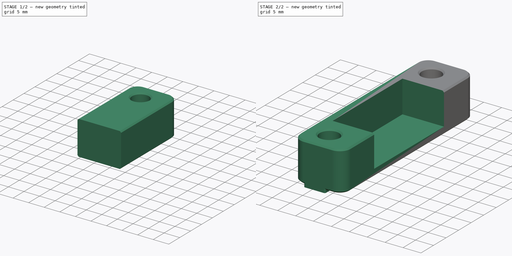
[diagram: build sequence overview — one tinted view per stage of 2, left to right]
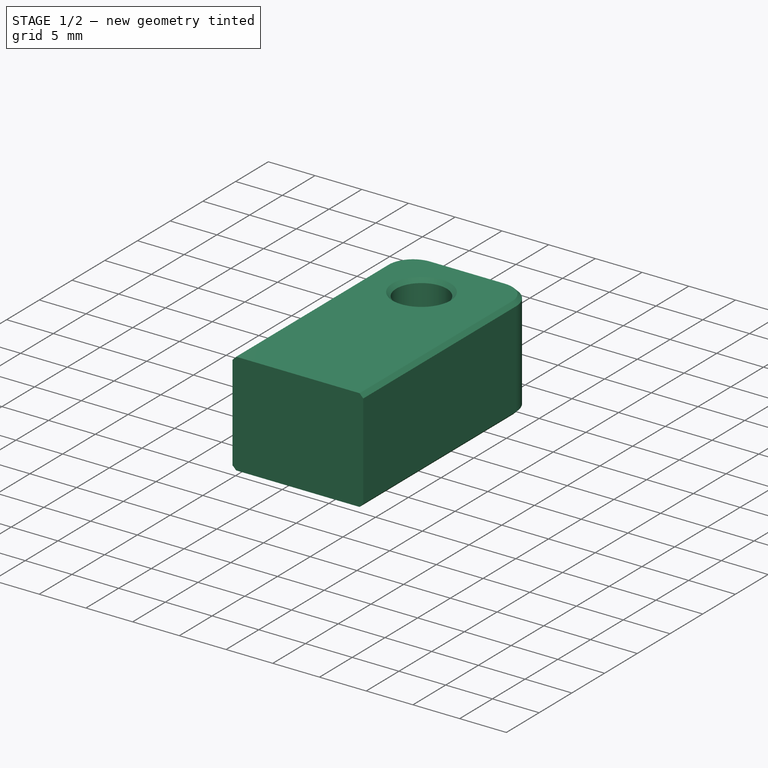
[diagram: stage 1 of 2 — iso view after this stage's code; geometry added in this stage tinted green]
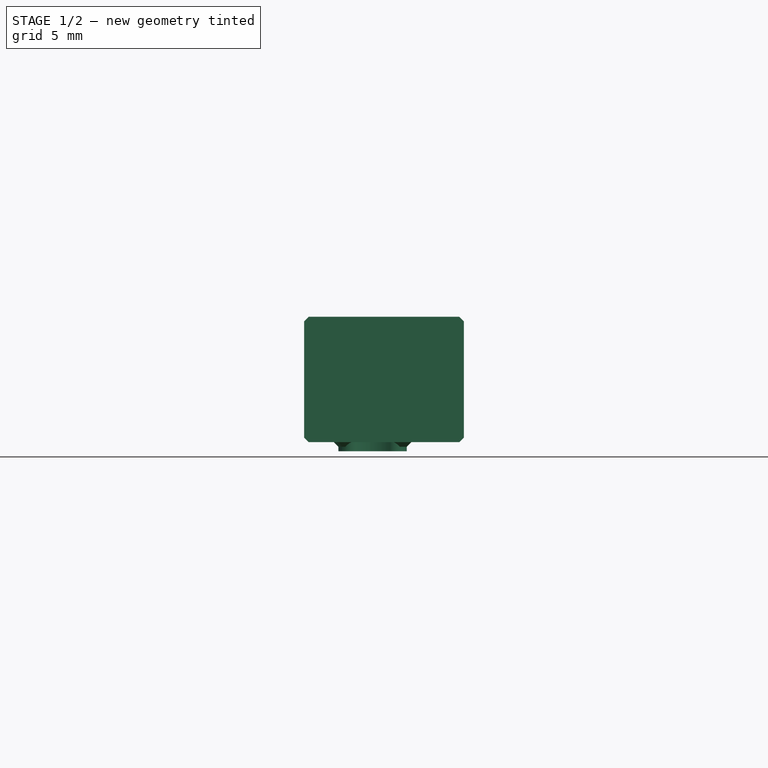
[diagram: stage 1 of 2 — front view after this stage's code; geometry added in this stage tinted green]
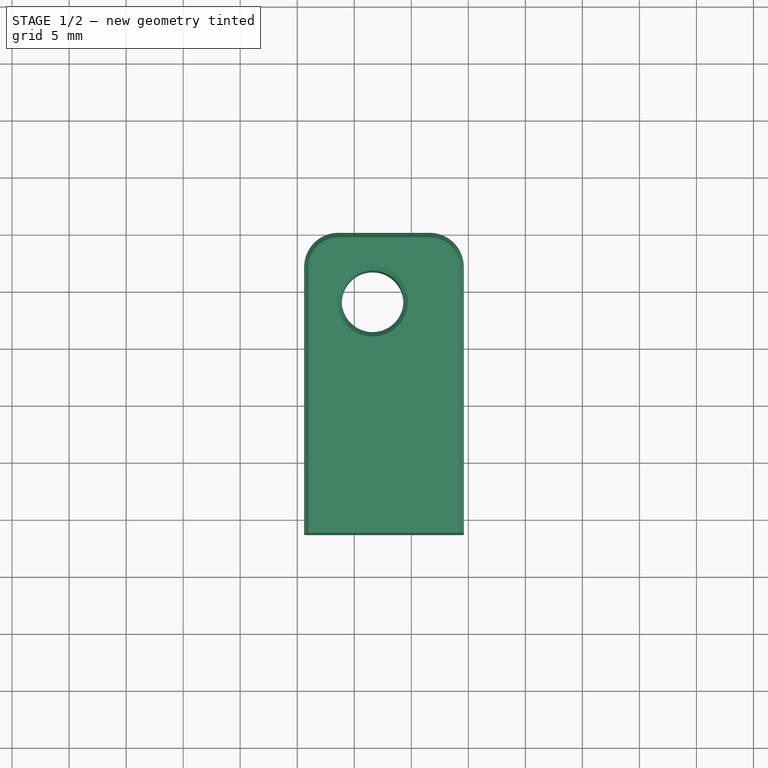
[diagram: stage 1 of 2 — top view after this stage's code; geometry added in this stage tinted green]
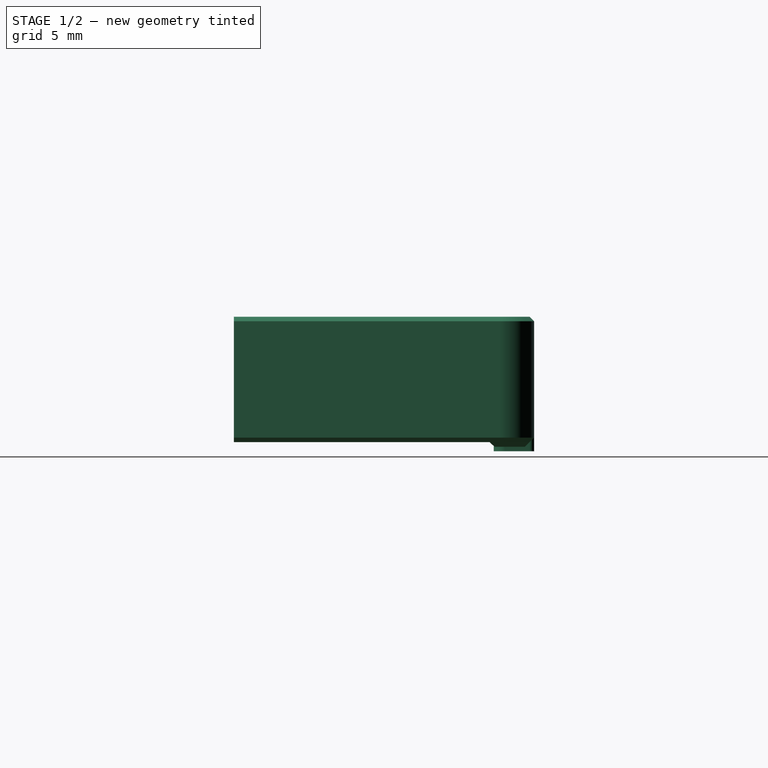
[diagram: stage 1 of 2 — right view after this stage's code; geometry added in this stage tinted green]
FCSTD DOCUMENT  (FreeCAD 0.22R37645 (Git))
Label: bottom panel support
License: All rights reserved
LicenseURL: http://en.wikipedia.org/wiki/All_rights_reserved
objects: Sketcher::SketchObject×2, PartDesign::Pocket×2, Part::Feature×1, PartDesign::FeatureBase×1, PartDesign::Mirrored×1, PartDesign::Body×1
note: 10 computed .brp shape members not serialized (recipe doc carries the construction recipe); baked Part::Feature solids carry a one-line shape summary decoded from their .brp

FEATURE [Part::Feature] Part__Feature142  label="Inverted_DIN_Mount(Mirror)_x2"
  Placement = pos=(-21.2334,262.868,-573.482) rot=(-0.707107,0,0.707107;3.14159rad)
  shape: bbox 11.81 x 60.01 x 77.92 mm, 156 faces (baked)
FEATURE [PartDesign::FeatureBase] BaseFeature
  BaseFeature = -> Part__Feature142
  Suppressed = false
FEATURE [Sketcher::SketchObject] Sketch
  AttachmentSupport = -> [BaseFeature]
  FullyConstrained = false
  MapMode = 5
  Support = -> [BaseFeature]
  sketch-geometry (6):
    g0: LineSegment StartX=-79.7555 StartY=3.68077 StartZ=0 EndX=-32.5817 EndY=3.68077 EndZ=0
    g1: LineSegment StartX=-32.5817 StartY=3.68077 StartZ=0 EndX=-32.5817 EndY=38.8266 EndZ=0
    g2: LineSegment StartX=-32.5817 StartY=38.8266 StartZ=0 EndX=16.8101 EndY=38.8266 EndZ=0
    g3: LineSegment StartX=16.8101 StartY=38.8266 StartZ=0 EndX=19.9664 EndY=-37.2658 EndZ=0
    g4: LineSegment StartX=19.9664 StartY=-37.2658 StartZ=0 EndX=-73.1017 EndY=-37.2658 EndZ=0
    g5: LineSegment StartX=-73.1017 StartY=-37.2658 StartZ=0 EndX=-79.7555 EndY=3.68077 EndZ=0
  constraints (10):
    c: Horizontal(g0)
    c: Coincident(g0,g1)
    c: Vertical(g1)
    c: Coincident(g1,g2)
    c: Horizontal(g2)
    c: Coincident(g2,g3)
    c: Coincident(g3,g4)
    c: Horizontal(g4)
    c: Coincident(g4,g5)
    c: Coincident(g5,g0)
FEATURE [PartDesign::Pocket] Pocket
  BaseFeature = -> BaseFeature
  Direction = (0,0,-1)
  Length = 5
  Length2 = 5
  Profile = -> Sketch
  ReferenceAxis = -> Sketch [N_Axis]
  Suppressed = false
  Type = 1
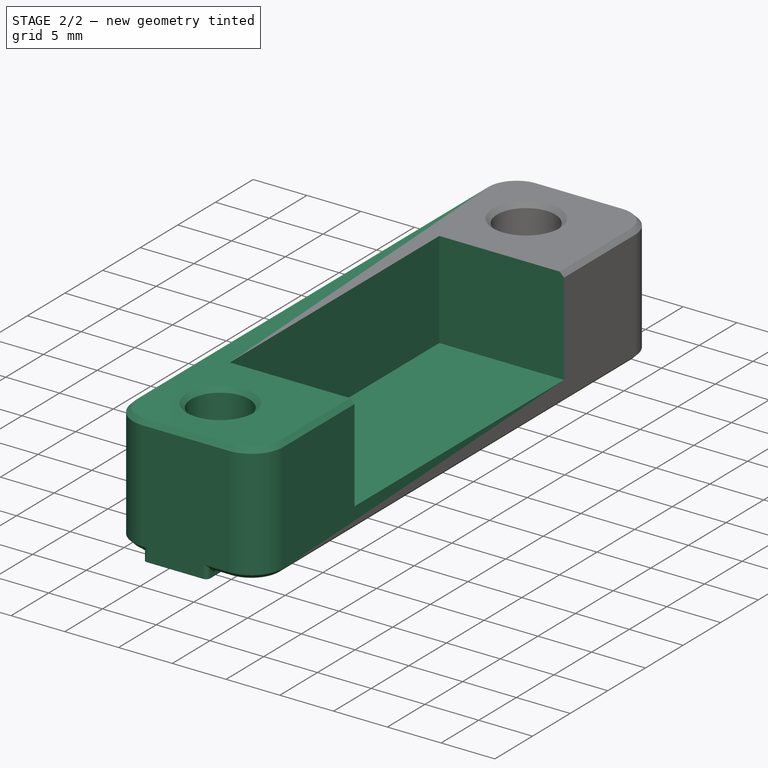
[diagram: stage 2 of 2 — iso view after this stage's code; geometry added in this stage tinted green]
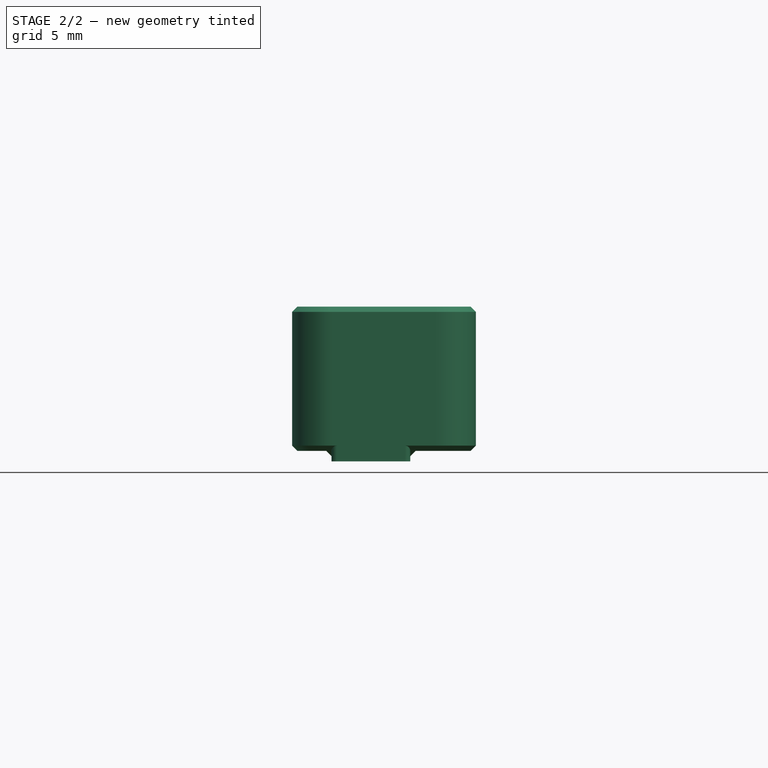
[diagram: stage 2 of 2 — front view after this stage's code; geometry added in this stage tinted green]
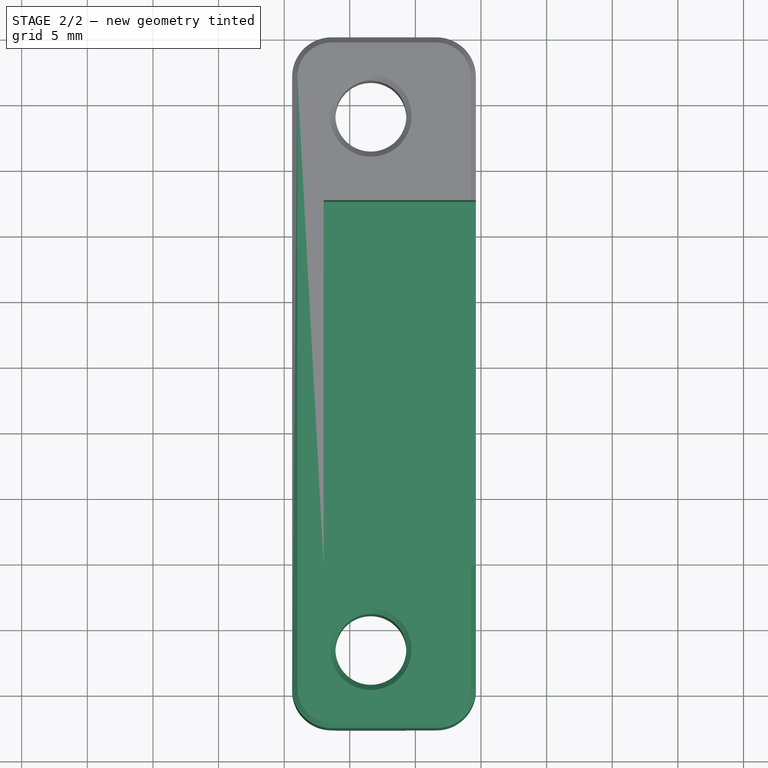
[diagram: stage 2 of 2 — top view after this stage's code; geometry added in this stage tinted green]
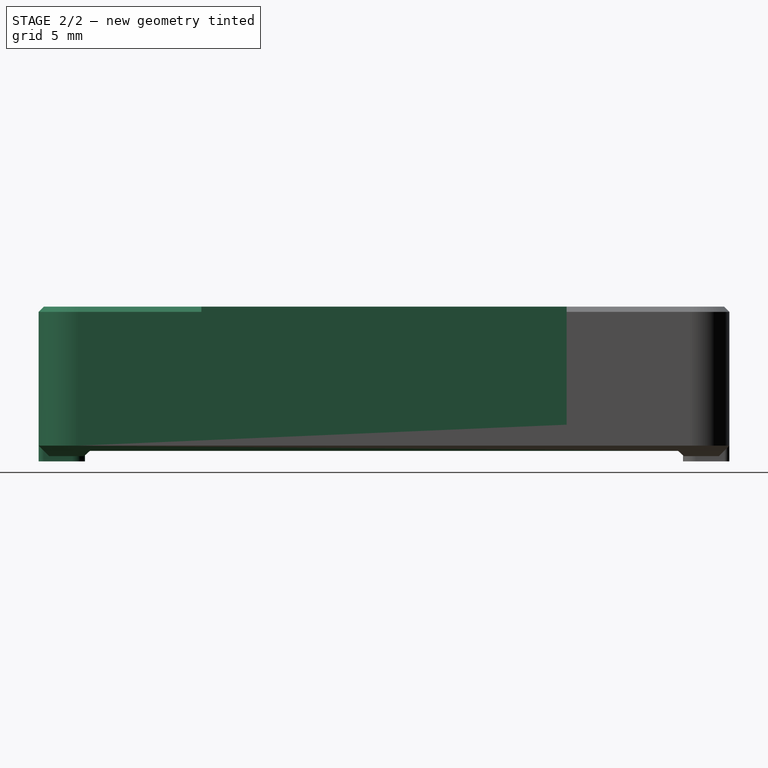
[diagram: stage 2 of 2 — right view after this stage's code; geometry added in this stage tinted green]
FEATURE [PartDesign::Mirrored] Mirrored
  BaseFeature = -> Pocket
  MirrorPlane = -> Pocket [Face15]
  Refine = true
  Suppressed = false
  TransformMode = 1
FEATURE [Sketcher::SketchObject] Sketch001
  AttachmentSupport = -> [Mirrored]
  ExternalGeometry = -> [Mirrored]
  FullyConstrained = false
  MapMode = 5
  Support = -> [Mirrored]
  sketch-geometry (4):
    g0: LineSegment StartX=-66.9931 StartY=17.6 StartZ=0 EndX=-66.9931 EndY=-10.2385 EndZ=0
    g1: LineSegment StartX=-66.9931 StartY=-10.2385 StartZ=0 EndX=-39.4713 EndY=-10.2385 EndZ=0
    g2: LineSegment StartX=-39.4713 StartY=-10.2385 StartZ=0 EndX=-39.4713 EndY=17.6 EndZ=0
    g3: LineSegment StartX=-39.4713 StartY=17.6 StartZ=0 EndX=-66.9931 EndY=17.6 EndZ=0
  constraints (11):
    c: Coincident(g0,g1)
    c: Coincident(g1,g2)
    c: Coincident(g2,g3)
    c: Coincident(g3,g0)
    c: Vertical(g0)
    c: Vertical(g2)
    c: Horizontal(g1)
    c: Horizontal(g3)
    c: DistanceX(g-5,g0) = 2
    c: DistanceY(g-4,g0) = 12
    c: DistanceY(g0,g-3) = 12
FEATURE [PartDesign::Pocket] Pocket001
  BaseFeature = -> Mirrored
  Direction = (0,0,-1)
  Length = 9
  Length2 = 5
  Profile = -> Sketch001
  ReferenceAxis = -> Sketch001 [N_Axis]
  Suppressed = false
  Type = 0
FEATURE [PartDesign::Body] Body  label="bottom panel support"
  AllowCompound = false
  BaseFeature = -> Part__Feature142
  Group = -> [BaseFeature,Sketch,Pocket,Mirrored,Sketch001,Pocket001]
  Origin = -> Origin
  Tip = -> Pocket001
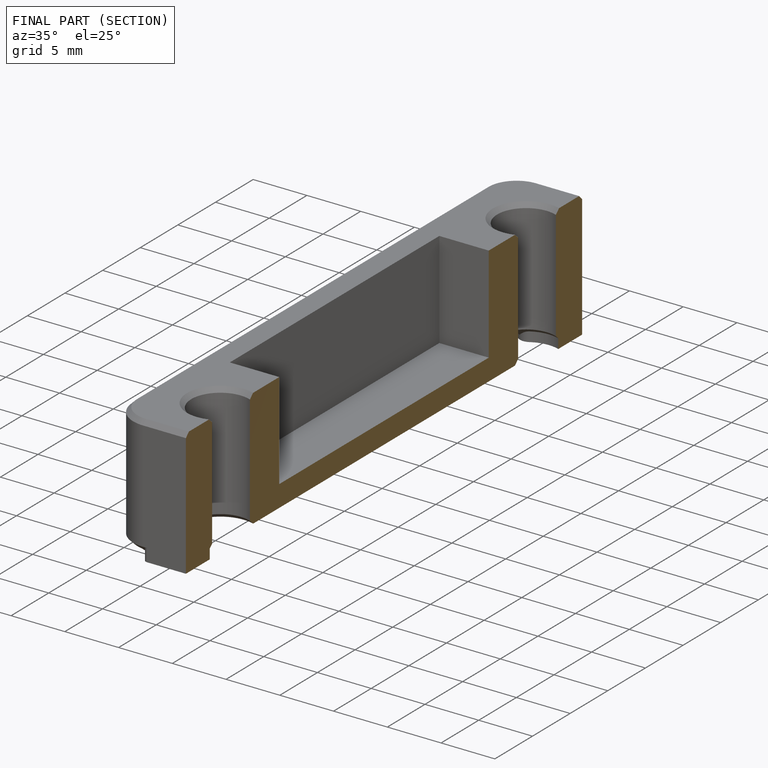
[diagram: finished part — half-section view (interior)]
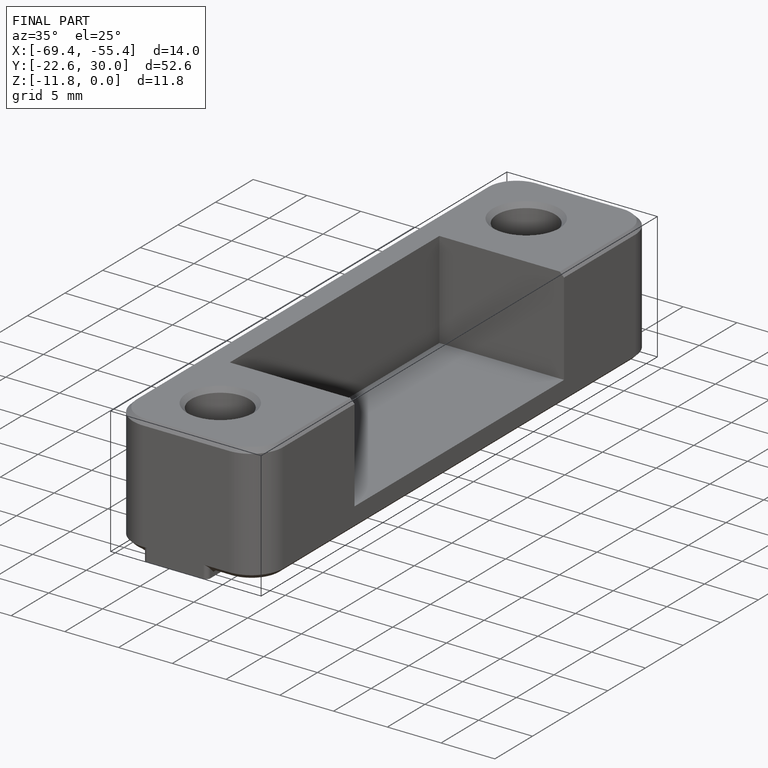
[diagram: finished part — iso view with bounding-box wireframe]
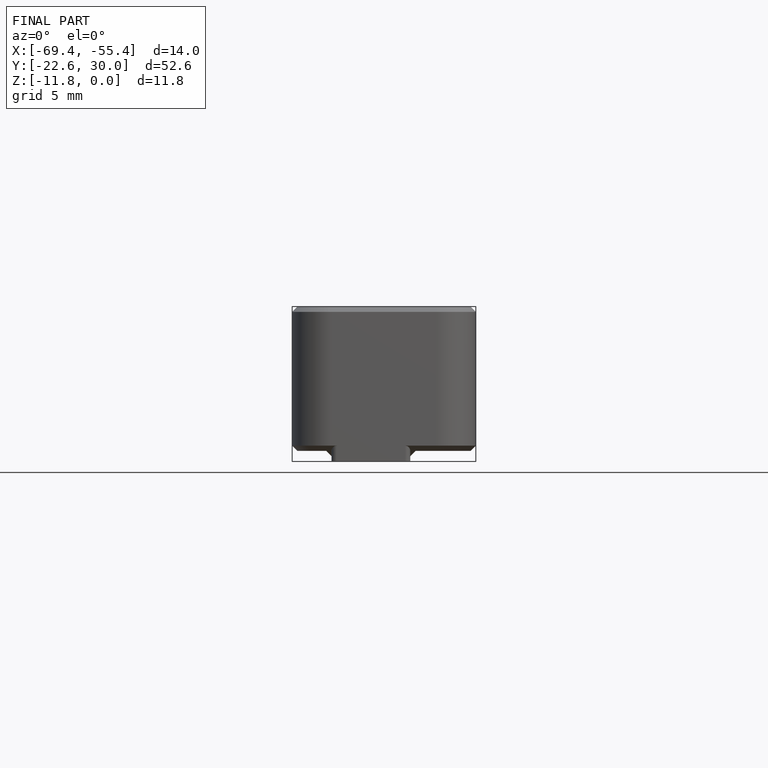
[diagram: finished part — front view with bounding-box wireframe]
